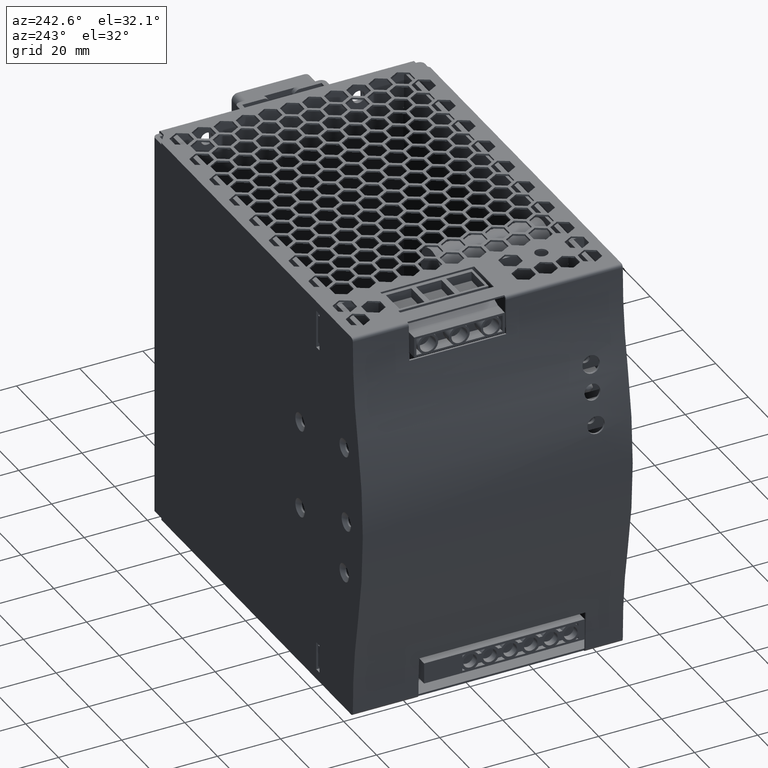
[diagram: clean part render]
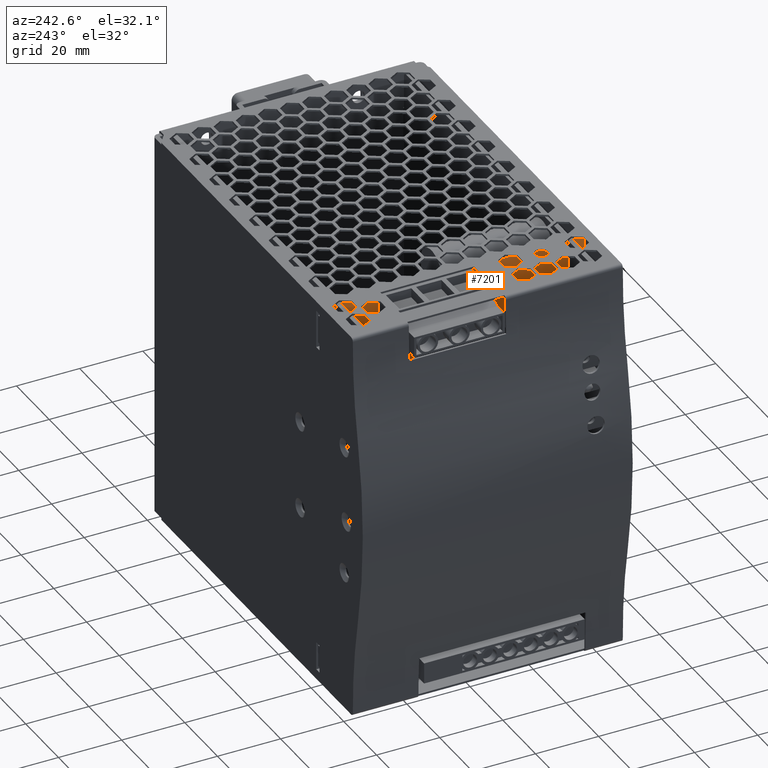
[diagram: same view with one face highlighted and labeled with its STEP entity id]
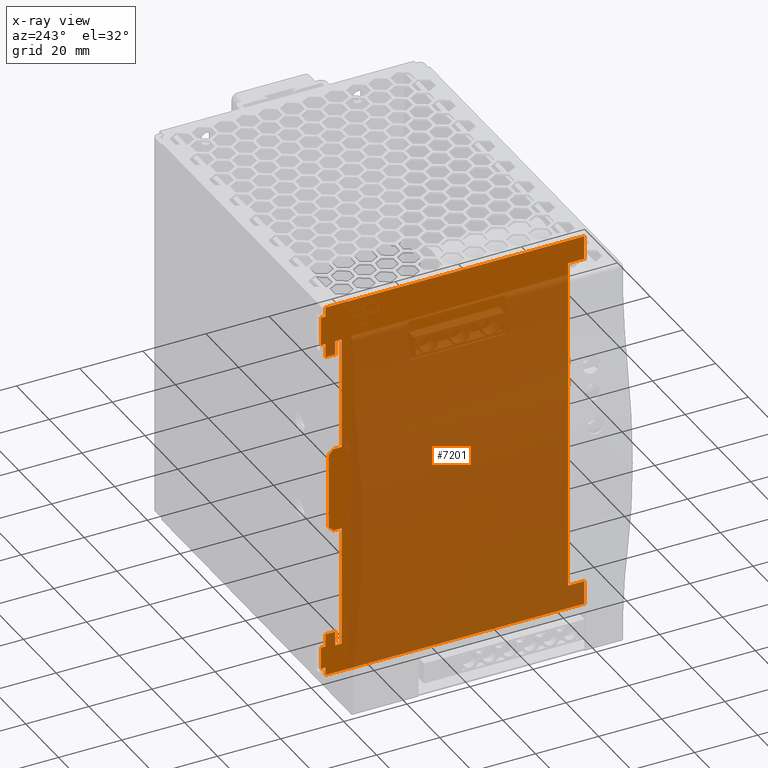
[diagram: x-ray of the same camera — body ghosted, the highlighted face saturated]
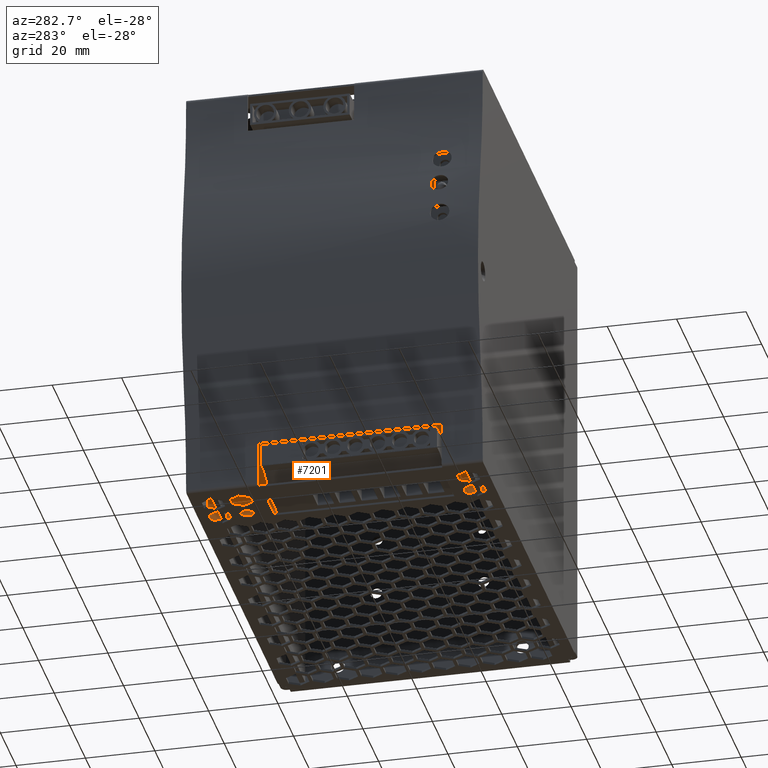
[diagram: same view with one face highlighted and labeled with its STEP entity id]
A machine part, auxiliary view. The second image highlights one B-rep face of the part: STEP entity #7201.
The next image is the same camera in x-ray: the body ghosted, the highlighted face saturated — about 83% of this face is hidden behind the body in this view.
A second angle (auxiliary view) of the same face is appended — the face is thin or edge-on in the first view.
In plain terms, the highlighted planar face has unit normal (1, 0, 0).
Its self-contained STEP definition (entity closure, byte-faithful):
#5735=CARTESIAN_POINT('',(-2.597499799709690,25.836137000000004,26.749618064602299));
#5736=VERTEX_POINT('',#5735);
#5743=CARTESIAN_POINT('',(-2.597499799709690,25.836137000000004,24.749618064611401));
#5744=VERTEX_POINT('',#5743);
#5745=CARTESIAN_POINT('',(-2.597499799709690,25.836137000000004,26.749618064602299));
#5746=DIRECTION('',(0.0,0.0,-1.0));
#5747=VECTOR('',#5746,1.999999999990898);
#5748=LINE('',#5745,#5747);
#5749=EDGE_CURVE('',#5736,#5744,#5748,.T.);
#5759=CARTESIAN_POINT('',(-2.597499799709690,25.836137000000004,34.023838064561595));
#5760=VERTEX_POINT('',#5759);
#5761=CARTESIAN_POINT('',(-2.597499799709690,25.836137000000004,32.023838064570704));
#5762=VERTEX_POINT('',#5761);
#5763=CARTESIAN_POINT('',(-2.597499799709690,25.836137000000004,34.023838064561595));
#5764=DIRECTION('',(0.0,0.0,-1.0));
#5765=VECTOR('',#5764,1.999999999990891);
#5766=LINE('',#5763,#5765);
#5767=EDGE_CURVE('',#5760,#5762,#5766,.T.);
#6336=CARTESIAN_POINT('',(-2.597499799710151,25.935707000000004,24.749618064611401));
#6337=VERTEX_POINT('',#6336);
#6353=CARTESIAN_POINT('',(-2.597499799709690,25.836137000000004,24.749618064611401));
#6354=DIRECTION('',(-4.625093E-012,1.0,0.0));
#6355=VECTOR('',#6354,0.099570000000000);
#6356=LINE('',#6353,#6355);
#6357=EDGE_CURVE('',#5744,#6337,#6356,.T.);
#6367=CARTESIAN_POINT('',(-2.597499799709690,25.935707000000004,-41.500011935072401));
#6368=VERTEX_POINT('',#6367);
#6369=CARTESIAN_POINT('',(-2.597499799709690,25.935707000000004,-41.500011935072401));
#6370=DIRECTION('',(0.0,0.0,1.0));
#6371=VECTOR('',#6370,66.249629999683805);
#6372=LINE('',#6369,#6371);
#6373=EDGE_CURVE('',#6368,#6337,#6372,.T.);
#6398=CARTESIAN_POINT('',(-2.597499799710151,102.735726299785010,-35.500041935122496));
#6399=VERTEX_POINT('',#6398);
#6408=CARTESIAN_POINT('',(-2.597499799709690,99.636116999678308,-35.500041935122496));
#6409=VERTEX_POINT('',#6408);
#6410=CARTESIAN_POINT('',(-2.597499799710151,102.735726299785010,-35.500041935122496));
#6411=DIRECTION('',(1.485737E-013,-1.0,0.0));
#6412=VECTOR('',#6411,3.099609300106707);
#6413=LINE('',#6410,#6412);
#6414=EDGE_CURVE('',#6399,#6409,#6413,.T.);
#6438=CARTESIAN_POINT('',(-2.597499799709690,102.735726299785010,-39.499866935123293));
#6439=VERTEX_POINT('',#6438);
#6448=CARTESIAN_POINT('',(-2.597499799710151,102.735726299785010,-35.500041935122496));
#6449=DIRECTION('',(1.151352E-013,0.0,-1.0));
#6450=VECTOR('',#6449,3.999825000000797);
#6451=LINE('',#6448,#6450);
#6452=EDGE_CURVE('',#6399,#6439,#6451,.T.);
#6479=CARTESIAN_POINT('',(-2.597499799709690,104.235726999778990,-46.500011935079606));
#6480=VERTEX_POINT('',#6479);
#6487=CARTESIAN_POINT('',(-2.597499799709690,104.235726999778990,-39.499866935123293));
#6488=VERTEX_POINT('',#6487);
#6489=CARTESIAN_POINT('',(-2.597499799709690,104.235726999778990,-46.500011935079606));
#6490=DIRECTION('',(0.0,0.0,1.0));
#6491=VECTOR('',#6490,7.000144999956312);
#6492=LINE('',#6489,#6491);
#6493=EDGE_CURVE('',#6480,#6488,#6492,.T.);
#6519=CARTESIAN_POINT('',(-2.597499799710151,102.735726299785010,-49.000011935072401));
#6520=VERTEX_POINT('',#6519);
#6527=CARTESIAN_POINT('',(-2.597499799710151,102.735726299785010,-46.500011935079606));
#6528=VERTEX_POINT('',#6527);
#6529=CARTESIAN_POINT('',(-2.597499799710151,102.735726299785010,-49.000011935072401));
#6530=DIRECTION('',(0.0,0.0,1.0));
#6531=VECTOR('',#6530,2.499999999992795);
#6532=LINE('',#6529,#6531);
#6533=EDGE_CURVE('',#6520,#6528,#6532,.T.);
#6557=CARTESIAN_POINT('',(-2.597499799709690,20.786116999993602,-49.000011935072401));
#6558=VERTEX_POINT('',#6557);
#6565=CARTESIAN_POINT('',(-2.597499799710151,102.735726299785010,-49.000011935072401));
#6566=DIRECTION('',(0.0,-1.0,0.0));
#6567=VECTOR('',#6566,81.949609299791405);
#6568=LINE('',#6565,#6567);
#6569=EDGE_CURVE('',#6520,#6558,#6568,.T.);
#6582=CARTESIAN_POINT('',(-2.597499799709690,20.786116999993602,-41.500011935072401));
#6583=VERTEX_POINT('',#6582);
#6590=CARTESIAN_POINT('',(-2.597499799709690,20.786116999993602,-41.500011935072401));
#6591=DIRECTION('',(0.0,0.0,-1.0));
#6592=VECTOR('',#6591,7.500000000000000);
#6593=LINE('',#6590,#6592);
#6594=EDGE_CURVE('',#6583,#6558,#6593,.T.);
#6893=CARTESIAN_POINT('',(-2.597499799710151,102.735726299785010,-46.500011935079606));
#6894=DIRECTION('',(3.070135E-013,1.0,0.0));
#6895=VECTOR('',#6894,1.500000699993976);
#6896=LINE('',#6893,#6895);
#6897=EDGE_CURVE('',#6528,#6480,#6896,.T.);
#6911=CARTESIAN_POINT('',(-2.597499799709690,104.235726999778990,-39.499866935123293));
#6912=DIRECTION('',(0.0,-1.0,0.0));
#6913=VECTOR('',#6912,1.500000699993976);
#6914=LINE('',#6911,#6913);
#6915=EDGE_CURVE('',#6488,#6439,#6914,.T.);
#6925=CARTESIAN_POINT('',(-2.597499799709690,25.935707000000004,-41.500011935072401));
#6926=DIRECTION('',(0.0,-1.0,0.0));
#6927=VECTOR('',#6926,5.149590000006402);
#6928=LINE('',#6925,#6927);
#6929=EDGE_CURVE('',#6368,#6583,#6928,.T.);
#6937=CARTESIAN_POINT('',(-2.597499799709690,49.710713692793107,51.690189155769204));
#6938=DIRECTION('',(1.0,0.0,0.0));
#6939=DIRECTION('',(0.0,0.0,-1.0));
#6940=AXIS2_PLACEMENT_3D('',#6937,#6938,#6939);
#6941=PLANE('',#6940);
#6942=CARTESIAN_POINT('',(-2.597499799710151,25.935707000000004,26.749618064602299));
#6943=VERTEX_POINT('',#6942);
#6944=CARTESIAN_POINT('',(-2.597499799710151,25.935707000000004,32.023838064570704));
#6945=VERTEX_POINT('',#6944);
#6946=CARTESIAN_POINT('',(-2.597499799710151,25.935707000000004,26.749618064602299));
#6947=DIRECTION('',(0.0,0.0,1.0));
#6948=VECTOR('',#6947,5.274219999968405);
#6949=LINE('',#6946,#6948);
#6950=EDGE_CURVE('',#6943,#6945,#6949,.T.);
#6951=ORIENTED_EDGE('',*,*,#6950,.T.);
#6952=CARTESIAN_POINT('',(-2.597499799709690,25.836137000000004,32.023838064570704));
#6953=DIRECTION('',(-4.625093E-012,1.0,0.0));
#6954=VECTOR('',#6953,0.099570000000000);
#6955=LINE('',#6952,#6954);
#6956=EDGE_CURVE('',#5762,#6945,#6955,.T.);
#6957=ORIENTED_EDGE('',*,*,#6956,.F.);
#6958=ORIENTED_EDGE('',*,*,#5767,.F.);
#6959=CARTESIAN_POINT('',(-2.597499799710151,25.935707000000004,34.023838064561595));
#6960=VERTEX_POINT('',#6959);
#6961=CARTESIAN_POINT('',(-2.597499799710151,25.935707000000004,34.023838064561595));
#6962=DIRECTION('',(4.625093E-012,-1.0,0.0));
#6963=VECTOR('',#6962,0.099570000000000);
#6964=LINE('',#6961,#6963);
#6965=EDGE_CURVE('',#6960,#5760,#6964,.T.);
#6966=ORIENTED_EDGE('',*,*,#6965,.F.);
#6967=CARTESIAN_POINT('',(-2.597499799709690,25.935707000000004,65.499988064440203));
#6968=VERTEX_POINT('',#6967);
#6969=CARTESIAN_POINT('',(-2.597499799710151,25.935707000000004,34.023838064561595));
#6970=DIRECTION('',(0.0,0.0,1.0));
#6971=VECTOR('',#6970,31.476149999878608);
#6972=LINE('',#6969,#6971);
#6973=EDGE_CURVE('',#6960,#6968,#6972,.T.);
#6974=ORIENTED_EDGE('',*,*,#6973,.T.);
#6975=CARTESIAN_POINT('',(-2.597499799709690,20.785706999993604,65.499988064440203));
#6976=VERTEX_POINT('',#6975);
#6977=CARTESIAN_POINT('',(-2.597499799709690,20.785706999993604,65.499988064440203));
#6978=DIRECTION('',(0.0,1.0,0.0));
#6979=VECTOR('',#6978,5.150000000006401);
#6980=LINE('',#6977,#6979);
#6981=EDGE_CURVE('',#6976,#6968,#6980,.T.);
#6982=ORIENTED_EDGE('',*,*,#6981,.F.);
#6983=CARTESIAN_POINT('',(-2.597499799710151,20.785706999993604,72.999988064440203));
#6984=VERTEX_POINT('',#6983);
#6985=CARTESIAN_POINT('',(-2.597499799710151,20.785706999993604,72.999988064440203));
#6986=DIRECTION('',(0.0,0.0,-1.0));
#6987=VECTOR('',#6986,7.500000000000000);
#6988=LINE('',#6985,#6987);
#6989=EDGE_CURVE('',#6984,#6976,#6988,.T.);
#6990=ORIENTED_EDGE('',*,*,#6989,.F.);
#6991=CARTESIAN_POINT('',(-2.597499799710151,102.735726299785010,72.999988064440203));
#6992=VERTEX_POINT('',#6991);
#6993=CARTESIAN_POINT('',(-2.597499799710151,20.785706999993604,72.999988064440203));
#6994=DIRECTION('',(0.0,1.0,0.0));
#6995=VECTOR('',#6994,81.950019299791407);
#6996=LINE('',#6993,#6995);
#6997=EDGE_CURVE('',#6984,#6992,#6996,.T.);
#6998=ORIENTED_EDGE('',*,*,#6997,.T.);
#6999=CARTESIAN_POINT('',(-2.597499799710151,102.735726299785010,69.999988064447408));
#7000=VERTEX_POINT('',#6999);
#7001=CARTESIAN_POINT('',(-2.597499799710151,102.735726299785010,69.999988064447408));
#7002=DIRECTION('',(0.0,0.0,1.0));
#7003=VECTOR('',#7002,2.999999999992795);
#7004=LINE('',#7001,#7003);
#7005=EDGE_CURVE('',#7000,#6992,#7004,.T.);
#7006=ORIENTED_EDGE('',*,*,#7005,.F.);
#7007=CARTESIAN_POINT('',(-2.597499799710151,104.235726299779000,69.999988064447408));
#7008=VERTEX_POINT('',#7007);
#7009=CARTESIAN_POINT('',(-2.597499799710151,104.235726299779000,69.999988064447408));
#7010=DIRECTION('',(0.0,-1.0,0.0));
#7011=VECTOR('',#7010,1.499999999993989);
#7012=LINE('',#7009,#7011);
#7013=EDGE_CURVE('',#7008,#7000,#7012,.T.);
#7014=ORIENTED_EDGE('',*,*,#7013,.F.);
#7015=CARTESIAN_POINT('',(-2.597499799710151,104.235726299779000,61.000358064479904));
#7016=VERTEX_POINT('',#7015);
#7017=CARTESIAN_POINT('',(-2.597499799710151,104.235726299779000,61.000358064479904));
#7018=DIRECTION('',(0.0,0.0,1.0));
#7019=VECTOR('',#7018,8.999629999967503);
#7020=LINE('',#7017,#7019);
#7021=EDGE_CURVE('',#7016,#7008,#7020,.T.);
#7022=ORIENTED_EDGE('',*,*,#7021,.F.);
#7023=CARTESIAN_POINT('',(-2.597499799710151,102.735726299785010,61.000358064479904));
#7024=VERTEX_POINT('',#7023);
#7025=CARTESIAN_POINT('',(-2.597499799710151,102.735726299785010,61.000358064479904));
#7026=DIRECTION('',(0.0,1.0,0.0));
#7027=VECTOR('',#7026,1.499999999993989);
#7028=LINE('',#7025,#7027);
#7029=EDGE_CURVE('',#7024,#7016,#7028,.T.);
#7030=ORIENTED_EDGE('',*,*,#7029,.F.);
#7031=CARTESIAN_POINT('',(-2.597499799710151,102.735726299785010,56.500533064479100));
#7032=VERTEX_POINT('',#7031);
#7033=CARTESIAN_POINT('',(-2.597499799710151,102.735726299785010,56.500533064479100));
#7034=DIRECTION('',(0.0,0.0,1.0));
#7035=VECTOR('',#7034,4.499825000000804);
#7036=LINE('',#7033,#7035);
#7037=EDGE_CURVE('',#7032,#7024,#7036,.T.);
#7038=ORIENTED_EDGE('',*,*,#7037,.F.);
#7039=CARTESIAN_POINT('',(-2.597499799710151,99.636116999678308,56.500533064479100));
#7040=VERTEX_POINT('',#7039);
#7041=CARTESIAN_POINT('',(-2.597499799710151,99.636116999678308,56.500533064479100));
#7042=DIRECTION('',(0.0,1.0,0.0));
#7043=VECTOR('',#7042,3.099609300106707);
#7044=LINE('',#7041,#7043);
#7045=EDGE_CURVE('',#7040,#7032,#7044,.T.);
#7046=ORIENTED_EDGE('',*,*,#7045,.F.);
#7047=CARTESIAN_POINT('',(-2.597499799710151,99.636116999678308,60.999988064487511));
#7048=VERTEX_POINT('',#7047);
#7049=CARTESIAN_POINT('',(-2.597499799710151,99.636116999678308,56.500533064479100));
#7050=DIRECTION('',(0.0,0.0,1.0));
#7051=VECTOR('',#7050,4.499455000008410);
#7052=LINE('',#7049,#7051);
#7053=EDGE_CURVE('',#7040,#7048,#7052,.T.);
#7054=ORIENTED_EDGE('',*,*,#7053,.T.);
#7055=CARTESIAN_POINT('',(-2.597499799709690,97.636116999686323,60.999988064487511));
#7056=VERTEX_POINT('',#7055);
#7057=CARTESIAN_POINT('',(-2.597499799710151,99.636116999678308,60.999988064487511));
#7058=DIRECTION('',(2.302603E-013,-1.0,0.0));
#7059=VECTOR('',#7058,1.999999999991985);
#7060=LINE('',#7057,#7059);
#7061=EDGE_CURVE('',#7048,#7056,#7060,.T.);
#7062=ORIENTED_EDGE('',*,*,#7061,.T.);
#7063=CARTESIAN_POINT('',(-2.597499799709690,97.636116999686323,57.123396064435994));
#7064=VERTEX_POINT('',#7063);
#7065=CARTESIAN_POINT('',(-2.597499799709690,97.636116999686323,60.999988064487511));
#7066=DIRECTION('',(0.0,0.0,-1.0));
#7067=VECTOR('',#7066,3.876592000051517);
#7068=LINE('',#7065,#7067);
#7069=EDGE_CURVE('',#7056,#7064,#7068,.T.);
#7070=ORIENTED_EDGE('',*,*,#7069,.T.);
#7071=CARTESIAN_POINT('',(-2.597499799709690,97.636137000035717,57.123396064435994));
#7072=VERTEX_POINT('',#7071);
#7073=CARTESIAN_POINT('',(-2.597499799709690,97.636116999686323,57.123396064435994));
#7074=DIRECTION('',(0.0,1.0,0.0));
#7075=VECTOR('',#7074,0.000020000349394);
#7076=LINE('',#7073,#7075);
#7077=EDGE_CURVE('',#7064,#7072,#7076,.T.);
#7078=ORIENTED_EDGE('',*,*,#7077,.T.);
#7079=CARTESIAN_POINT('',(-2.597499799709690,97.636136999785421,36.150205268586497));
#7080=VERTEX_POINT('',#7079);
#7081=CARTESIAN_POINT('',(-2.597499799709690,97.636137000035717,57.123396064435994));
#7082=DIRECTION('',(0.0,-1.193408E-011,-1.0));
#7083=VECTOR('',#7082,20.973190795849497);
#7084=LINE('',#7081,#7083);
#7085=EDGE_CURVE('',#7072,#7080,#7084,.T.);
#7086=ORIENTED_EDGE('',*,*,#7085,.T.);
#7087=CARTESIAN_POINT('',(-2.597499799709690,97.636136999785421,25.249618064660503));
#7088=VERTEX_POINT('',#7087);
#7089=CARTESIAN_POINT('',(-2.597499799709690,97.636136999785421,25.249618064660503));
#7090=DIRECTION('',(0.0,0.0,1.0));
#7091=VECTOR('',#7090,10.900587203925994);
#7092=LINE('',#7089,#7091);
#7093=EDGE_CURVE('',#7088,#7080,#7092,.T.);
#7094=ORIENTED_EDGE('',*,*,#7093,.F.);
#7095=CARTESIAN_POINT('',(-2.597499799709690,100.235726299785010,25.249618064660503));
#7096=VERTEX_POINT('',#7095);
#7097=CARTESIAN_POINT('',(-2.597499799709690,100.235726299785010,25.249618064660503));
#7098=DIRECTION('',(0.0,-1.0,0.0));
#7099=VECTOR('',#7098,2.599589299999593);
#7100=LINE('',#7097,#7099);
#7101=EDGE_CURVE('',#7096,#7088,#7100,.T.);
#7102=ORIENTED_EDGE('',*,*,#7101,.F.);
#7103=CARTESIAN_POINT('',(-2.597499799710151,101.735726299785010,23.749618064660499));
#7104=VERTEX_POINT('',#7103);
#7105=CARTESIAN_POINT('',(-2.597499799709690,100.235726299785010,25.249618064660503));
#7106=DIRECTION('',(-2.170915E-013,0.707106781186547,-0.707106781186548));
#7107=VECTOR('',#7106,2.121320343559645);
#7108=LINE('',#7105,#7107);
#7109=EDGE_CURVE('',#7096,#7104,#7108,.T.);
#7110=ORIENTED_EDGE('',*,*,#7109,.T.);
#7111=CARTESIAN_POINT('',(-2.597499799710151,101.735726299785010,-0.250381935239446));
#7112=VERTEX_POINT('',#7111);
#7113=CARTESIAN_POINT('',(-2.597499799710151,101.735726299785010,-0.250381935239446));
#7114=DIRECTION('',(0.0,0.0,1.0));
#7115=VECTOR('',#7114,23.999999999899945);
#7116=LINE('',#7113,#7115);
#7117=EDGE_CURVE('',#7112,#7104,#7116,.T.);
#7118=ORIENTED_EDGE('',*,*,#7117,.F.);
#7119=CARTESIAN_POINT('',(-2.597499799709470,100.235726299785010,-1.750381935239450));
#7120=VERTEX_POINT('',#7119);
#7121=CARTESIAN_POINT('',(-2.597499799710151,101.735726299785010,-0.250381935239446));
#7122=DIRECTION('',(3.207176E-013,-0.707106781186547,-0.707106781186548));
#7123=VECTOR('',#7122,2.121320343559646);
#7124=LINE('',#7121,#7123);
#7125=EDGE_CURVE('',#7112,#7120,#7124,.T.);
#7126=ORIENTED_EDGE('',*,*,#7125,.T.);
#7127=CARTESIAN_POINT('',(-2.597499799710151,97.636136999785421,-1.750381935239450));
#7128=VERTEX_POINT('',#7127);
#7129=CARTESIAN_POINT('',(-2.597499799710151,97.636136999785421,-1.750381935239450));
#7130=DIRECTION('',(2.617124E-013,1.0,0.0));
#7131=VECTOR('',#7130,2.599589299999593);
#7132=LINE('',#7129,#7131);
#7133=EDGE_CURVE('',#7128,#7120,#7132,.T.);
#7134=ORIENTED_EDGE('',*,*,#7133,.F.);
#7135=CARTESIAN_POINT('',(-2.597499799710151,97.636136999785293,-10.499999999651600));
#7136=VERTEX_POINT('',#7135);
#7137=CARTESIAN_POINT('',(-2.597499799710151,97.636136999785293,-10.499999999651600));
#7138=DIRECTION('',(0.0,0.0,1.0));
#7139=VECTOR('',#7138,8.749618064412150);
#7140=LINE('',#7137,#7139);
#7141=EDGE_CURVE('',#7136,#7128,#7140,.T.);
#7142=ORIENTED_EDGE('',*,*,#7141,.F.);
#7143=CARTESIAN_POINT('',(-2.597499799709690,97.636137000035717,-36.278890935562998));
#7144=VERTEX_POINT('',#7143);
#7145=CARTESIAN_POINT('',(-2.597499799710151,97.636136999785293,-10.499999999651600));
#7146=DIRECTION('',(1.786425E-014,9.714292E-012,-1.0));
#7147=VECTOR('',#7146,25.778890935911399);
#7148=LINE('',#7145,#7147);
#7149=EDGE_CURVE('',#7136,#7144,#7148,.T.);
#7150=ORIENTED_EDGE('',*,*,#7149,.T.);
#7151=CARTESIAN_POINT('',(-2.597499799710151,97.636116999686323,-36.278890935562998));
#7152=VERTEX_POINT('',#7151);
#7153=CARTESIAN_POINT('',(-2.597499799709690,97.636137000035717,-36.278890935562998));
#7154=DIRECTION('',(-0.000000023025623,-1.000000000000000,0.0));
#7155=VECTOR('',#7154,0.000020000349394);
#7156=LINE('',#7153,#7155);
#7157=EDGE_CURVE('',#7144,#7152,#7156,.T.);
#7158=ORIENTED_EDGE('',*,*,#7157,.T.);
#7159=CARTESIAN_POINT('',(-2.597499799710151,97.636116999686323,-40.000011935108695));
#7160=VERTEX_POINT('',#7159);
#7161=CARTESIAN_POINT('',(-2.597499799710151,97.636116999686323,-36.278890935562998));
#7162=DIRECTION('',(0.0,0.0,-1.0));
#7163=VECTOR('',#7162,3.721120999545697);
#7164=LINE('',#7161,#7163);
#7165=EDGE_CURVE('',#7152,#7160,#7164,.T.);
#7166=ORIENTED_EDGE('',*,*,#7165,.T.);
#7167=CARTESIAN_POINT('',(-2.597499799709690,99.636116999678308,-40.000011935108695));
#7168=VERTEX_POINT('',#7167);
#7169=CARTESIAN_POINT('',(-2.597499799710151,97.636116999686323,-40.000011935108695));
#7170=DIRECTION('',(2.302603E-013,1.0,0.0));
#7171=VECTOR('',#7170,1.999999999991985);
#7172=LINE('',#7169,#7171);
#7173=EDGE_CURVE('',#7160,#7168,#7172,.T.);
#7174=ORIENTED_EDGE('',*,*,#7173,.T.);
#7175=CARTESIAN_POINT('',(-2.597499799709690,99.636116999678308,-40.000011935108695));
#7176=DIRECTION('',(0.0,0.0,1.0));
#7177=VECTOR('',#7176,4.499969999986199);
#7178=LINE('',#7175,#7177);
#7179=EDGE_CURVE('',#7168,#6409,#7178,.T.);
#7180=ORIENTED_EDGE('',*,*,#7179,.T.);
#7181=ORIENTED_EDGE('',*,*,#6414,.F.);
#7182=ORIENTED_EDGE('',*,*,#6452,.T.);
#7183=ORIENTED_EDGE('',*,*,#6915,.F.);
#7184=ORIENTED_EDGE('',*,*,#6493,.F.);
#7185=ORIENTED_EDGE('',*,*,#6897,.F.);
#7186=ORIENTED_EDGE('',*,*,#6533,.F.);
#7187=ORIENTED_EDGE('',*,*,#6569,.T.);
#7188=ORIENTED_EDGE('',*,*,#6594,.F.);
#7189=ORIENTED_EDGE('',*,*,#6929,.F.);
#7190=ORIENTED_EDGE('',*,*,#6373,.T.);
#7191=ORIENTED_EDGE('',*,*,#6357,.F.);
#7192=ORIENTED_EDGE('',*,*,#5749,.F.);
#7193=CARTESIAN_POINT('',(-2.597499799710151,25.935707000000004,26.749618064602299));
#7194=DIRECTION('',(4.625093E-012,-1.0,0.0));
#7195=VECTOR('',#7194,0.099570000000000);
#7196=LINE('',#7193,#7195);
#7197=EDGE_CURVE('',#6943,#5736,#7196,.T.);
#7198=ORIENTED_EDGE('',*,*,#7197,.F.);
#7199=EDGE_LOOP('',(#6951,#6957,#6958,#6966,#6974,#6982,#6990,#6998,#7006,#7014,#7022,#7030,#7038,#7046,#7054,#7062,#7070,#7078,#7086,#7094,#7102,#7110,#7118,#7126,#7134,#7142,#7150,#7158,#7166,#7174,#7180,#7181,#7182,#7183,#7184,#7185,#7186,#7187,#7188,#7189,#7190,#7191,#7192,#7198));
#7200=FACE_OUTER_BOUND('',#7199,.T.);
#7201=ADVANCED_FACE('',(#7200),#6941,.F.);